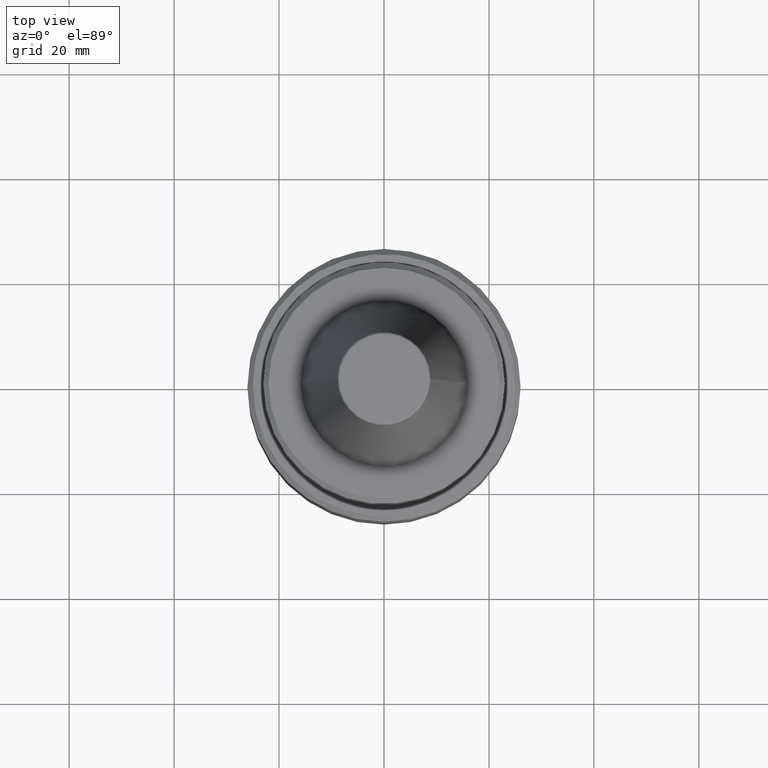
[diagram: clean part render]
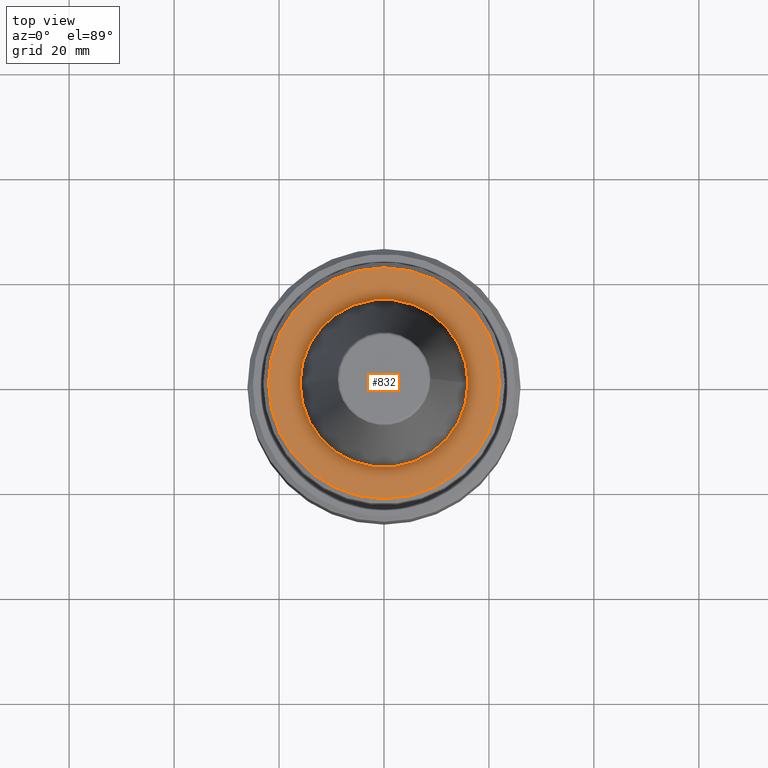
[diagram: same view with one face highlighted and labeled with its STEP entity id]
A machine part, top view. The second image highlights one B-rep face of the part: STEP entity #832.
In plain terms, the highlighted planar face has unit normal (0, 0, -1).
Its self-contained STEP definition (entity closure, byte-faithful):
#11 = CARTESIAN_POINT ( 'NONE',  ( -21.99999999999990800, 0.0000000000000000000, -2.000000000000001800 ) ) ;
#33 = DIRECTION ( 'NONE',  ( 1.000000000000000000, 0.0000000000000000000, 0.0000000000000000000 ) ) ;
#93 = ORIENTED_EDGE ( 'NONE', *, *, #406, .T. ) ;
#130 = EDGE_CURVE ( 'NONE', #342, #796, #757, .T. ) ;
#164 = CIRCLE ( 'NONE', #320, 16.00000000000034800 ) ;
#169 = EDGE_CURVE ( 'NONE', #173, #904, #531, .T. ) ;
#173 = VERTEX_POINT ( 'NONE', #11 ) ;
#184 = DIRECTION ( 'NONE',  ( 1.000000000000000000, 0.0000000000000000000, 0.0000000000000000000 ) ) ;
#189 = FACE_BOUND ( 'NONE', #439, .T. ) ;
#194 = ORIENTED_EDGE ( 'NONE', *, *, #315, .F. ) ;
#204 = AXIS2_PLACEMENT_3D ( 'NONE', #357, #328, #184 ) ;
#257 = CARTESIAN_POINT ( 'NONE',  ( -16.00000000000045800, 1.959434878635821100E-015, -2.000000000000057300 ) ) ;
#277 = ORIENTED_EDGE ( 'NONE', *, *, #130, .F. ) ;
#306 = AXIS2_PLACEMENT_3D ( 'NONE', #560, #636, #798 ) ;
#315 = EDGE_CURVE ( 'NONE', #796, #342, #164, .T. ) ;
#320 = AXIS2_PLACEMENT_3D ( 'NONE', #389, #858, #770 ) ;
#328 = DIRECTION ( 'NONE',  ( -0.0000000000000000000, -0.0000000000000000000, 1.000000000000000000 ) ) ;
#333 = CIRCLE ( 'NONE', #306, 21.99999999999990800 ) ;
#342 = VERTEX_POINT ( 'NONE', #257 ) ;
#357 = CARTESIAN_POINT ( 'NONE',  ( 0.0000000000000000000, 0.0000000000000000000, -2.000000000000001800 ) ) ;
#388 = FACE_OUTER_BOUND ( 'NONE', #540, .T. ) ;
#389 = CARTESIAN_POINT ( 'NONE',  ( 0.0000000000000000000, 0.0000000000000000000, -2.000000000000001800 ) ) ;
#406 = EDGE_CURVE ( 'NONE', #904, #173, #333, .T. ) ;
#439 = EDGE_LOOP ( 'NONE', ( #194, #277 ) ) ;
#460 = ORIENTED_EDGE ( 'NONE', *, *, #169, .T. ) ;
#521 = AXIS2_PLACEMENT_3D ( 'NONE', #571, #762, #681 ) ;
#531 = CIRCLE ( 'NONE', #204, 21.99999999999990800 ) ;
#540 = EDGE_LOOP ( 'NONE', ( #460, #93 ) ) ;
#560 = CARTESIAN_POINT ( 'NONE',  ( 0.0000000000000000000, 0.0000000000000000000, -2.000000000000001800 ) ) ;
#571 = CARTESIAN_POINT ( 'NONE',  ( 0.0000000000000000000, 21.99999999999990800, -2.000000000000001800 ) ) ;
#601 = DIRECTION ( 'NONE',  ( -0.0000000000000000000, -0.0000000000000000000, 1.000000000000000000 ) ) ;
#636 = DIRECTION ( 'NONE',  ( -0.0000000000000000000, -0.0000000000000000000, 1.000000000000000000 ) ) ;
#681 = DIRECTION ( 'NONE',  ( -1.000000000000000000, 0.0000000000000000000, -0.0000000000000000000 ) ) ;
#757 = CIRCLE ( 'NONE', #938, 16.00000000000034800 ) ;
#762 = DIRECTION ( 'NONE',  ( 0.0000000000000000000, 0.0000000000000000000, -1.000000000000000000 ) ) ;
#763 = CARTESIAN_POINT ( 'NONE',  ( 16.00000000000045800, 0.0000000000000000000, -2.000000000000057300 ) ) ;
#770 = DIRECTION ( 'NONE',  ( 1.000000000000000000, 0.0000000000000000000, 0.0000000000000000000 ) ) ;
#796 = VERTEX_POINT ( 'NONE', #763 ) ;
#798 = DIRECTION ( 'NONE',  ( 1.000000000000000000, 0.0000000000000000000, 0.0000000000000000000 ) ) ;
#832 = ADVANCED_FACE ( 'NONE', ( #189, #388 ), #1018, .F. ) ;
#854 = CARTESIAN_POINT ( 'NONE',  ( 21.99999999999990800, 2.755455298081526600E-015, -2.000000000000001800 ) ) ;
#858 = DIRECTION ( 'NONE',  ( -0.0000000000000000000, -0.0000000000000000000, 1.000000000000000000 ) ) ;
#861 = CARTESIAN_POINT ( 'NONE',  ( 0.0000000000000000000, 0.0000000000000000000, -2.000000000000001800 ) ) ;
#904 = VERTEX_POINT ( 'NONE', #854 ) ;
#938 = AXIS2_PLACEMENT_3D ( 'NONE', #861, #601, #33 ) ;
#1018 = PLANE ( 'NONE',  #521 ) ;